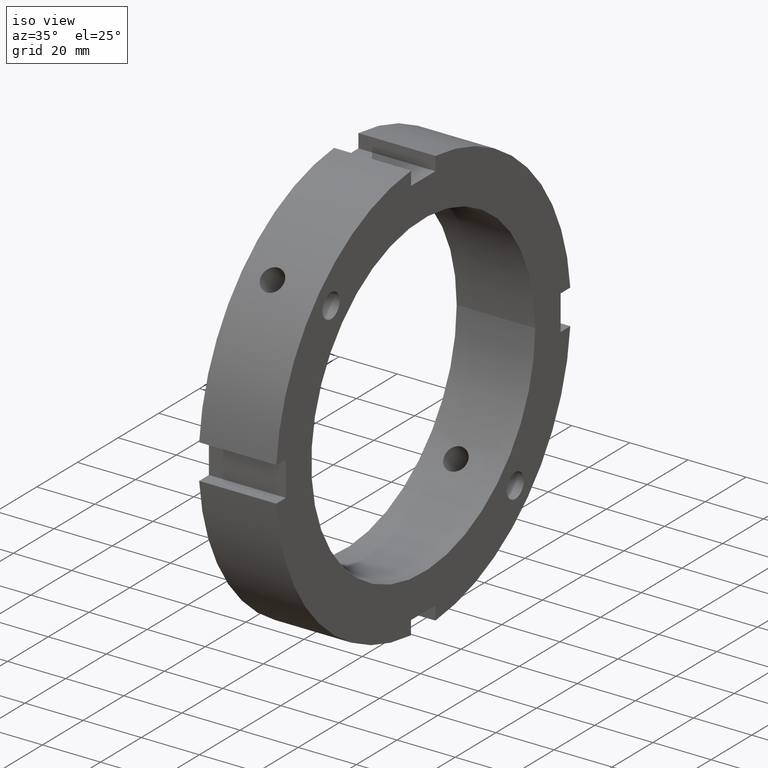
[diagram: clean part render]
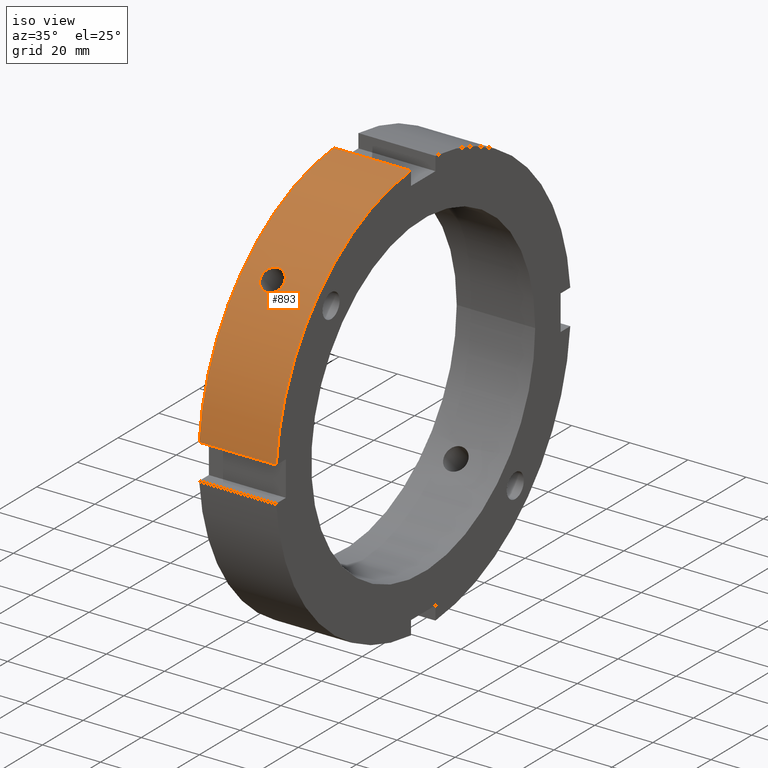
[diagram: same view with one face highlighted and labeled with its STEP entity id]
A machine part, iso view. The second image highlights one B-rep face of the part: STEP entity #893.
In plain terms, the highlighted cylindrical surface (partial cylindrical patch) has radius 72.5 mm, axis along (1, 0, 0).
Its self-contained STEP definition (entity closure, byte-faithful):
#209=CARTESIAN_POINT('',(10.999999999999982,-53.982169746092445,48.396026174718742));
#210=VERTEX_POINT('',#209);
#211=CARTESIAN_POINT('',(10.999999999999982,-53.982169746092438,48.396026174718749));
#212=CARTESIAN_POINT('',(10.503923751563612,-53.982169746092438,48.396026174718749));
#213=CARTESIAN_POINT('',(9.974848764904804,-53.916028923099752,48.470120273871906));
#214=CARTESIAN_POINT('',(9.0016794625268,-53.645330991550473,48.769551945398121));
#215=CARTESIAN_POINT('',(8.557576817486401,-53.440570702666683,48.99467869243189));
#216=CARTESIAN_POINT('',(7.856279715613002,-52.96379725963034,49.509689122117848));
#217=CARTESIAN_POINT('',(7.552303598608995,-52.659945865430032,49.833893778569831));
#218=CARTESIAN_POINT('',(7.149161023486935,-51.986162927236272,50.536380279805897));
#219=CARTESIAN_POINT('',(7.049999999999983,-51.616020410767632,50.914462861281756));
#220=CARTESIAN_POINT('',(7.049999999999983,-50.914462861281713,51.616020410767682));
#221=CARTESIAN_POINT('',(7.149161023486936,-50.536380279805854,51.986162927236307));
#222=CARTESIAN_POINT('',(7.552303598608992,-49.833893778569795,52.659945865430061));
#223=CARTESIAN_POINT('',(7.856279715613002,-49.509689122117813,52.963797259630368));
#224=CARTESIAN_POINT('',(8.557576817486403,-48.994678692431847,53.440570702666719));
#225=CARTESIAN_POINT('',(9.001679462526807,-48.769551945398078,53.64533099155053));
#226=CARTESIAN_POINT('',(9.974848764904817,-48.470120273871864,53.916028923099795));
#227=CARTESIAN_POINT('',(10.503923751563612,-48.396026174718699,53.982169746092474));
#228=CARTESIAN_POINT('',(11.496076248436356,-48.396026174718699,53.982169746092474));
#229=CARTESIAN_POINT('',(12.025151235095155,-48.470120273871864,53.916028923099795));
#230=CARTESIAN_POINT('',(12.998320537473163,-48.769551945398078,53.645330991550523));
#231=CARTESIAN_POINT('',(13.442423182513563,-48.994678692431847,53.440570702666719));
#232=CARTESIAN_POINT('',(14.143720284386966,-49.509689122117813,52.963797259630368));
#233=CARTESIAN_POINT('',(14.44769640139098,-49.833893778569795,52.659945865430053));
#234=CARTESIAN_POINT('',(14.850838976513032,-50.536380279805854,51.986162927236293));
#235=CARTESIAN_POINT('',(14.949999999999983,-50.914462861281713,51.616020410767689));
#236=CARTESIAN_POINT('',(14.949999999999983,-51.616020410767632,50.914462861281763));
#237=CARTESIAN_POINT('',(14.850838976513037,-51.986162927236251,50.536380279805897));
#238=CARTESIAN_POINT('',(14.447696401390983,-52.659945865430018,49.833893778569838));
#239=CARTESIAN_POINT('',(14.143720284386969,-52.96379725963034,49.509689122117855));
#240=CARTESIAN_POINT('',(13.442423182513568,-53.440570702666683,48.99467869243189));
#241=CARTESIAN_POINT('',(12.998320537473164,-53.645330991550473,48.769551945398121));
#242=CARTESIAN_POINT('',(12.025151235095159,-53.916028923099752,48.470120273871906));
#243=CARTESIAN_POINT('',(11.496076248436353,-53.982169746092438,48.396026174718749));
#244=CARTESIAN_POINT('',(10.99999999999998,-53.982169746092438,48.396026174718749));
#245=B_SPLINE_CURVE_WITH_KNOTS('',3,(#211,#212,#213,#214,#215,#216,#217,#218,#219,#220,#221,#222,#223,#224,#225,#226,#227,#228,#229,#230,#231,#232,#233,#234,#235,#236,#237,#238,#239,#240,#241,#242,#243,#244),.UNSPECIFIED.,.T.,.U.,(4,2,2,2,2,2,2,2,2,2,2,2,2,2,2,2,4),(0.0,0.148822874530912,0.297645749061824,0.446468579252058,0.595291409442292,0.744114239632526,0.89293706982276,1.041759944353672,1.190582818884583,1.339405693415495,1.488228567946407,1.637051398136641,1.785874228326875,1.934697058517108,2.083519888707342,2.232342763238254,2.381165637769167),.UNSPECIFIED.);
#246=EDGE_CURVE('',#210,#210,#245,.T.);
#637=CARTESIAN_POINT('',(0.49999999999998,-72.251297566202922,6.000000000000006));
#638=VERTEX_POINT('',#637);
#653=CARTESIAN_POINT('',(26.999999999999986,-72.251297566202922,6.000000000000005));
#654=VERTEX_POINT('',#653);
#661=CARTESIAN_POINT('',(0.49999999999998,-72.251297566202922,6.000000000000006));
#662=DIRECTION('',(1.0,0.0,0.0));
#663=VECTOR('',#662,26.500000000000007);
#664=LINE('',#661,#663);
#665=EDGE_CURVE('',#638,#654,#664,.T.);
#777=CARTESIAN_POINT('',(0.49999999999998,-5.999999999999992,72.251297566202922));
#778=VERTEX_POINT('',#777);
#787=CARTESIAN_POINT('',(26.999999999999986,-5.999999999999993,72.251297566202922));
#788=VERTEX_POINT('',#787);
#789=CARTESIAN_POINT('',(26.999999999999986,-5.999999999999992,72.251297566202922));
#790=DIRECTION('',(-1.0,0.0,0.0));
#791=VECTOR('',#790,26.500000000000007);
#792=LINE('',#789,#791);
#793=EDGE_CURVE('',#788,#778,#792,.T.);
#867=CARTESIAN_POINT('',(13.749999999999982,0.0,0.0));
#868=DIRECTION('',(1.0,0.0,0.0));
#869=DIRECTION('',(0.0,1.0,0.0));
#870=AXIS2_PLACEMENT_3D('',#867,#868,#869);
#871=CYLINDRICAL_SURFACE('',#870,72.5);
#872=ORIENTED_EDGE('',*,*,#665,.T.);
#873=CARTESIAN_POINT('',(26.999999999999986,0.0,0.0));
#874=DIRECTION('',(1.0,0.0,0.0));
#875=DIRECTION('',(0.0,1.0,0.0));
#876=AXIS2_PLACEMENT_3D('',#873,#874,#875);
#877=CIRCLE('',#876,72.5);
#878=EDGE_CURVE('',#788,#654,#877,.T.);
#879=ORIENTED_EDGE('',*,*,#878,.F.);
#880=ORIENTED_EDGE('',*,*,#793,.T.);
#881=CARTESIAN_POINT('',(0.49999999999998,0.0,0.0));
#882=DIRECTION('',(1.0,0.0,0.0));
#883=DIRECTION('',(0.0,1.0,0.0));
#884=AXIS2_PLACEMENT_3D('',#881,#882,#883);
#885=CIRCLE('',#884,72.5);
#886=EDGE_CURVE('',#778,#638,#885,.T.);
#887=ORIENTED_EDGE('',*,*,#886,.T.);
#888=EDGE_LOOP('',(#872,#879,#880,#887));
#889=FACE_OUTER_BOUND('',#888,.T.);
#890=ORIENTED_EDGE('',*,*,#246,.T.);
#891=EDGE_LOOP('',(#890));
#892=FACE_BOUND('',#891,.T.);
#893=ADVANCED_FACE('',(#889,#892),#871,.T.);